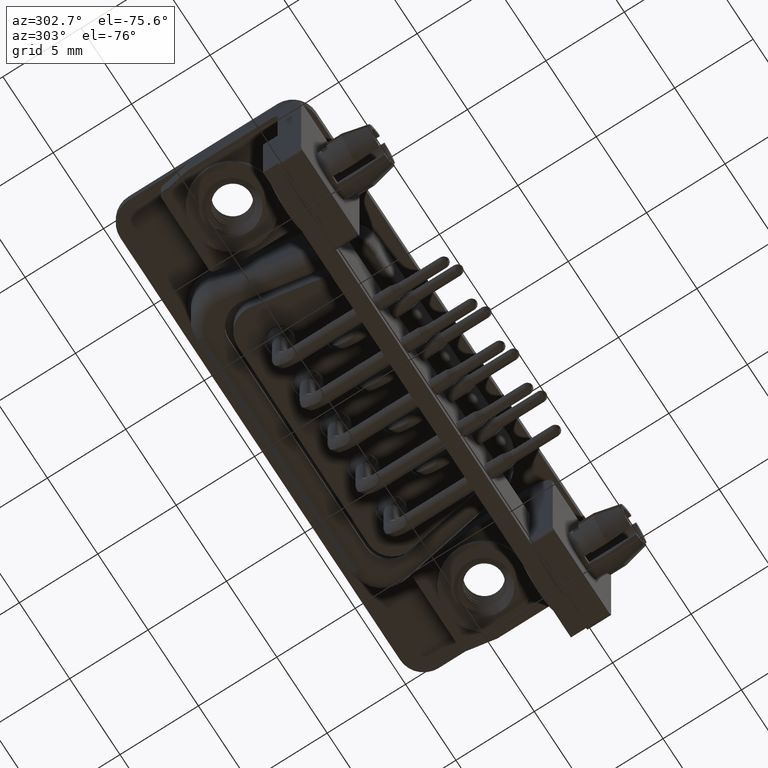
[diagram: clean part render]
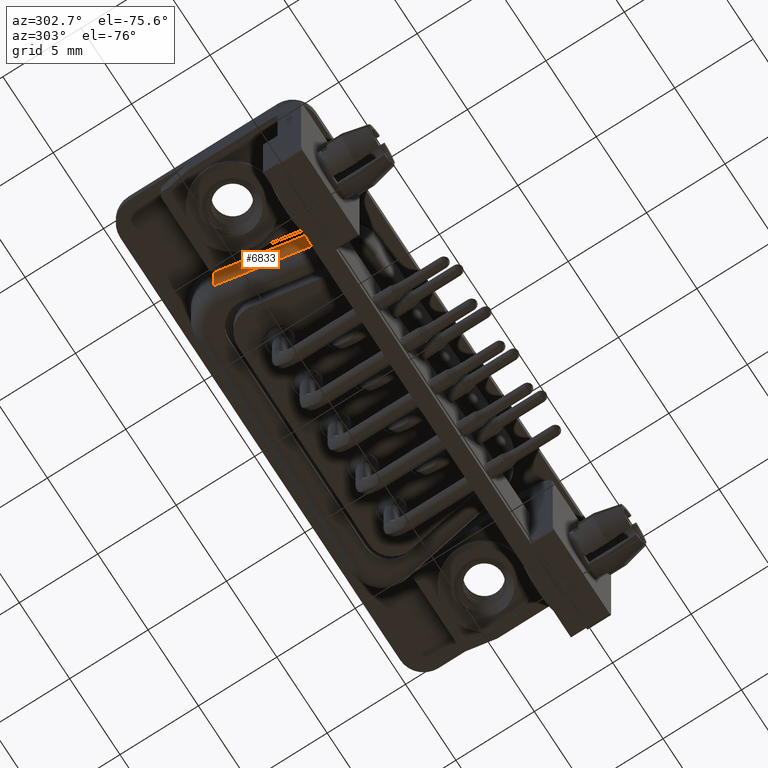
[diagram: same view with one face highlighted and labeled with its STEP entity id]
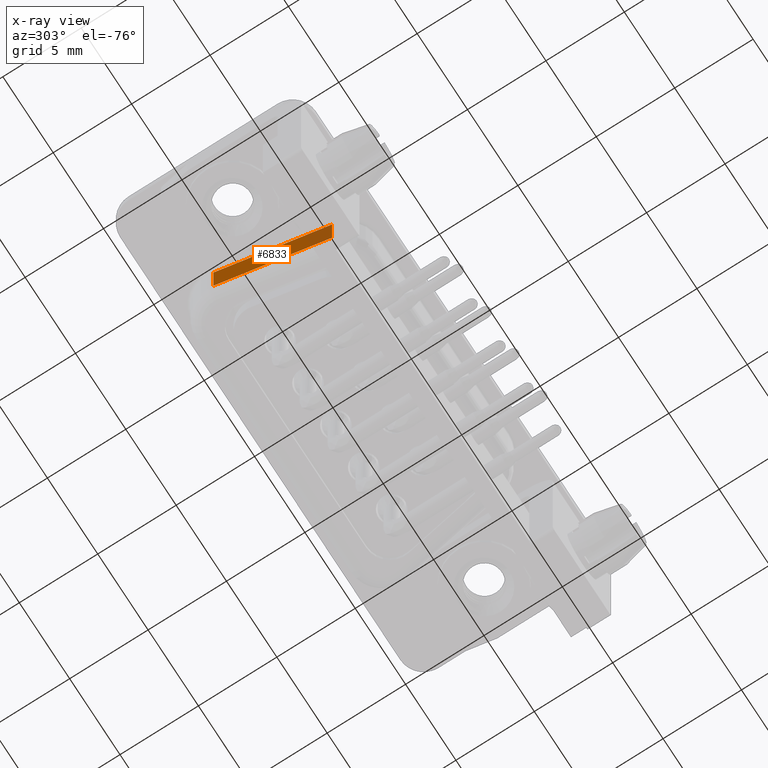
[diagram: x-ray of the same camera — body ghosted, the highlighted face saturated]
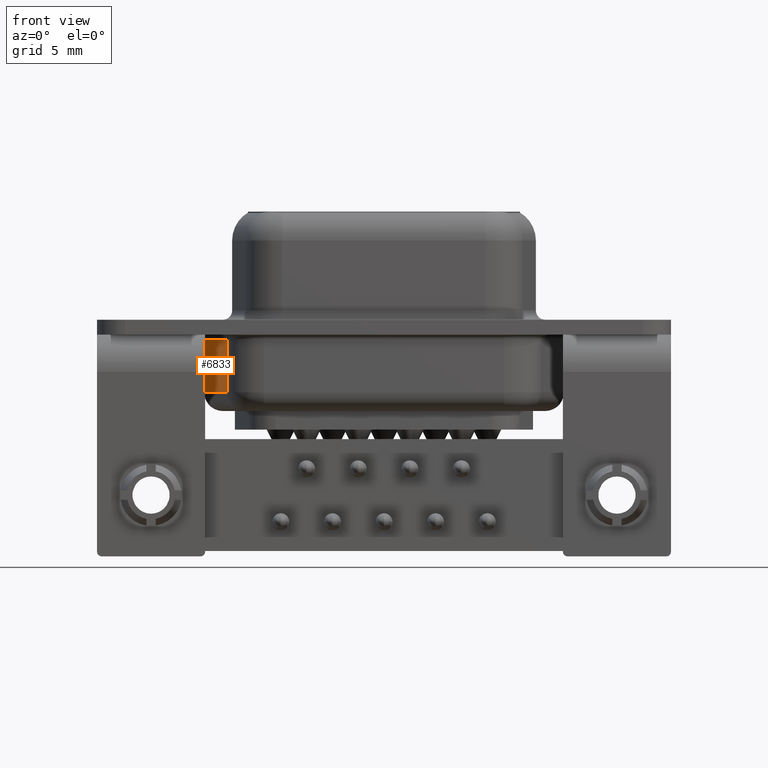
[diagram: same view with one face highlighted and labeled with its STEP entity id]
A machine part, auxiliary view. The second image highlights one B-rep face of the part: STEP entity #6833.
The next image is the same camera in x-ray: the body ghosted, the highlighted face saturated — about 20% of this face is hidden behind the body in this view.
A second angle (front view) of the same face is appended — the face is thin or edge-on in the first view.
In plain terms, the highlighted planar face has unit normal (0.9848, 0.1736, 0).
Its self-contained STEP definition (entity closure, byte-faithful):
#608 = EDGE_CURVE ( 'NONE', #6686, #18126, #18670, .T. ) ;
#2472 = DIRECTION ( 'NONE',  ( -0.0000000000000000000, -0.0000000000000000000, 1.000000000000000000 ) ) ;
#2609 = ORIENTED_EDGE ( 'NONE', *, *, #8607, .T. ) ;
#3243 = EDGE_CURVE ( 'NONE', #13156, #12513, #13260, .T. ) ;
#3312 = CARTESIAN_POINT ( 'NONE',  ( 2.880384493975582500, 3.052703644666155700, -4.500000000000000000 ) ) ;
#3924 = LINE ( 'NONE', #9496, #7858 ) ;
#4431 = CARTESIAN_POINT ( 'NONE',  ( 4.079407962793095700, -3.747296355333849000, -3.499999999999999600 ) ) ;
#4809 = PLANE ( 'NONE',  #5870 ) ;
#4974 = VECTOR ( 'NONE', #2472, 1000.000000000000000 ) ;
#5099 = DIRECTION ( 'NONE',  ( 0.1736481776669233600, -0.9848077530122092400, -0.0000000000000000000 ) ) ;
#5870 = AXIS2_PLACEMENT_3D ( 'NONE', #18026, #15085, #6284 ) ;
#6284 = DIRECTION ( 'NONE',  ( -0.1736481776669233600, 0.9848077530122092400, 0.0000000000000000000 ) ) ;
#6686 = VERTEX_POINT ( 'NONE', #4431 ) ;
#6833 = ADVANCED_FACE ( 'NONE', ( #9483 ), #4809, .F. ) ;
#6870 = VECTOR ( 'NONE', #17458, 1000.000000000000000 ) ;
#7858 = VECTOR ( 'NONE', #5099, 1000.000000000000100 ) ;
#8607 = EDGE_CURVE ( 'NONE', #18126, #12513, #12412, .T. ) ;
#8694 = ORIENTED_EDGE ( 'NONE', *, *, #3243, .F. ) ;
#9483 = FACE_OUTER_BOUND ( 'NONE', #14947, .T. ) ;
#9496 = CARTESIAN_POINT ( 'NONE',  ( 2.880384493975582500, 3.052703644666155700, -3.499999999999999600 ) ) ;
#10788 = CARTESIAN_POINT ( 'NONE',  ( 4.079407962793095700, -3.747296355333849000, -4.500000000000000000 ) ) ;
#12412 = LINE ( 'NONE', #18641, #15863 ) ;
#12513 = VERTEX_POINT ( 'NONE', #13817 ) ;
#12676 = DIRECTION ( 'NONE',  ( -0.1736481776669233600, 0.9848077530122092400, 0.0000000000000000000 ) ) ;
#12923 = ORIENTED_EDGE ( 'NONE', *, *, #608, .T. ) ;
#13156 = VERTEX_POINT ( 'NONE', #16346 ) ;
#13260 = LINE ( 'NONE', #3312, #4974 ) ;
#13817 = CARTESIAN_POINT ( 'NONE',  ( 2.880384493975582500, 3.052703644666155700, -0.6500000000000000200 ) ) ;
#13915 = ORIENTED_EDGE ( 'NONE', *, *, #13973, .T. ) ;
#13973 = EDGE_CURVE ( 'NONE', #13156, #6686, #3924, .T. ) ;
#14947 = EDGE_LOOP ( 'NONE', ( #8694, #13915, #12923, #2609 ) ) ;
#15085 = DIRECTION ( 'NONE',  ( 0.9848077530122093500, 0.1736481776669233900, 0.0000000000000000000 ) ) ;
#15863 = VECTOR ( 'NONE', #12676, 1000.000000000000100 ) ;
#16346 = CARTESIAN_POINT ( 'NONE',  ( 2.880384493975582500, 3.052703644666155700, -3.499999999999999600 ) ) ;
#17458 = DIRECTION ( 'NONE',  ( -0.0000000000000000000, -0.0000000000000000000, 1.000000000000000000 ) ) ;
#17702 = CARTESIAN_POINT ( 'NONE',  ( 4.079407962793095700, -3.747296355333849000, -0.6500000000000000200 ) ) ;
#18026 = CARTESIAN_POINT ( 'NONE',  ( 2.880384493975582500, 3.052703644666155700, -4.500000000000000000 ) ) ;
#18126 = VERTEX_POINT ( 'NONE', #17702 ) ;
#18641 = CARTESIAN_POINT ( 'NONE',  ( 2.880384493975582500, 3.052703644666155700, -0.6500000000000000200 ) ) ;
#18670 = LINE ( 'NONE', #10788, #6870 ) ;